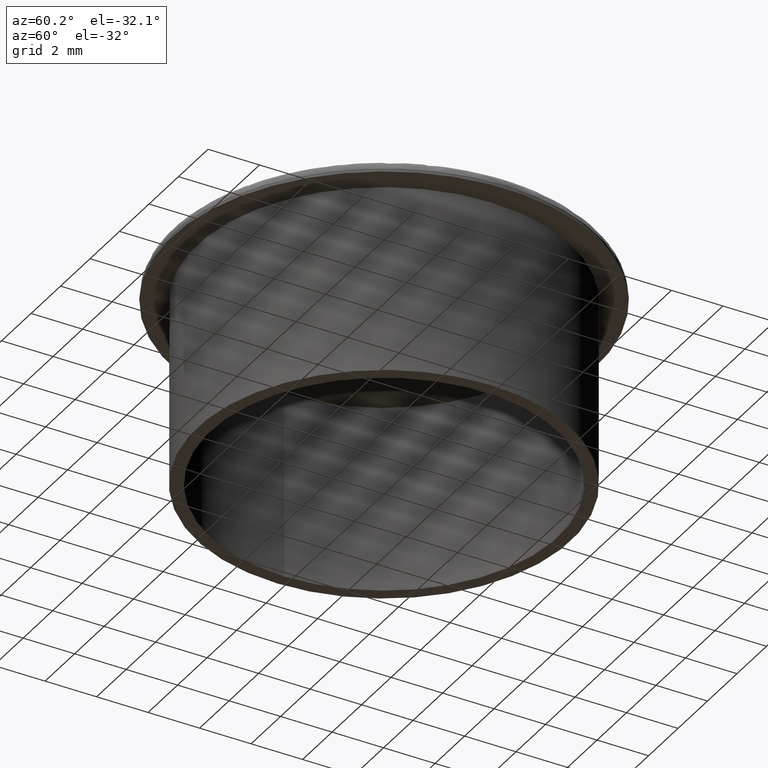
[diagram: clean part render]
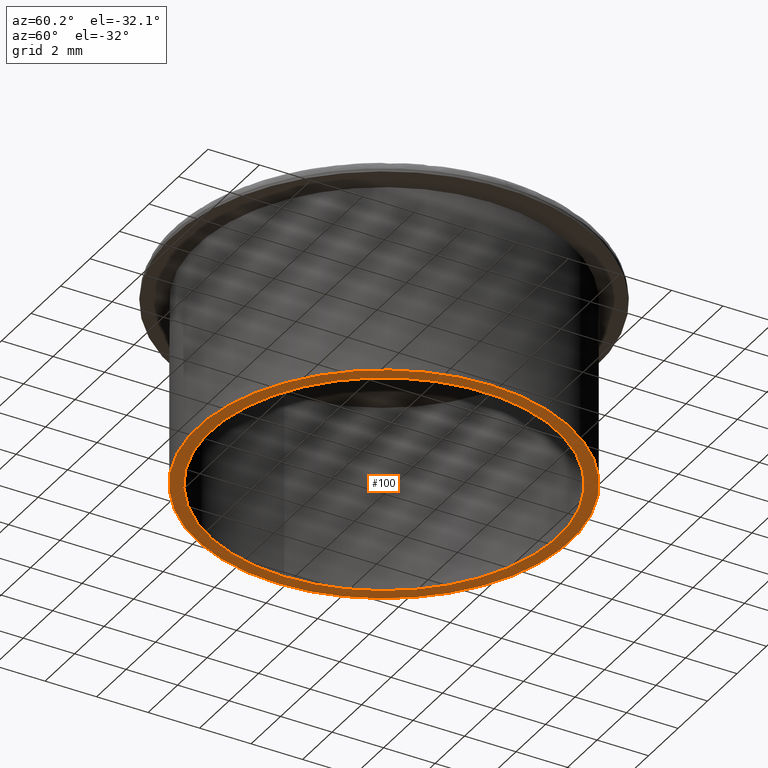
[diagram: same view with one face highlighted and labeled with its STEP entity id]
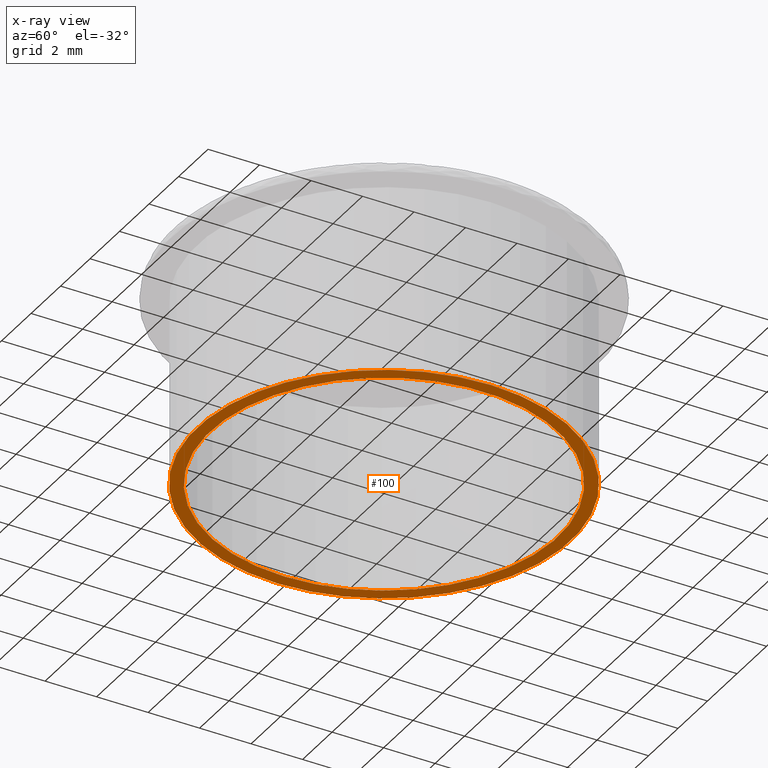
[diagram: x-ray of the same camera — body ghosted, the highlighted face saturated]
A machine part, auxiliary view. The second image highlights one B-rep face of the part: STEP entity #100.
The next image is the same camera in x-ray: the body ghosted, the highlighted face saturated — about 0% of this face is hidden behind the body in this view.
In plain terms, the highlighted planar face has unit normal (0, 0, 1).
Its self-contained STEP definition (entity closure, byte-faithful):
#18=FACE_BOUND('',#37,.T.);
#27=FACE_OUTER_BOUND('',#36,.T.);
#36=EDGE_LOOP('',(#78));
#37=EDGE_LOOP('',(#79));
#47=CIRCLE('',#111,6.75000000000001);
#48=CIRCLE('',#113,7.25000000000001);
#57=VERTEX_POINT('',#166);
#58=VERTEX_POINT('',#169);
#66=EDGE_CURVE('',#57,#57,#47,.T.);
#67=EDGE_CURVE('',#58,#58,#48,.T.);
#78=ORIENTED_EDGE('',*,*,#67,.T.);
#79=ORIENTED_EDGE('',*,*,#66,.F.);
#96=PLANE('',#112);
#100=ADVANCED_FACE('',(#27,#18),#96,.F.);
#111=AXIS2_PLACEMENT_3D('',#167,#133,#134);
#112=AXIS2_PLACEMENT_3D('',#168,#135,#136);
#113=AXIS2_PLACEMENT_3D('',#170,#137,#138);
#133=DIRECTION('center_axis',(0.,0.,-1.));
#134=DIRECTION('ref_axis',(1.,0.,0.));
#135=DIRECTION('center_axis',(0.,0.,1.));
#136=DIRECTION('ref_axis',(1.,0.,0.));
#137=DIRECTION('center_axis',(0.,0.,-1.));
#138=DIRECTION('ref_axis',(1.,0.,0.));
#166=CARTESIAN_POINT('',(-6.75000000000001,0.,-7.27228247973548));
#167=CARTESIAN_POINT('Origin',(0.,0.,-7.27228247973548));
#168=CARTESIAN_POINT('Origin',(-14.5,14.5,-7.27228247973548));
#169=CARTESIAN_POINT('',(-7.25000000000001,0.,-7.27228247973548));
#170=CARTESIAN_POINT('Origin',(0.,0.,-7.27228247973548));